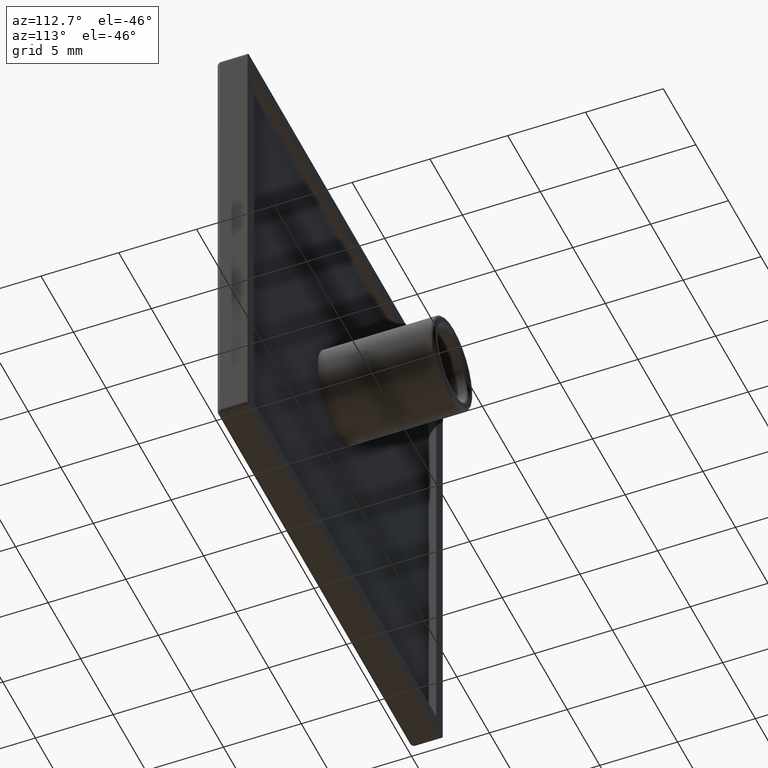
[diagram: clean part render]
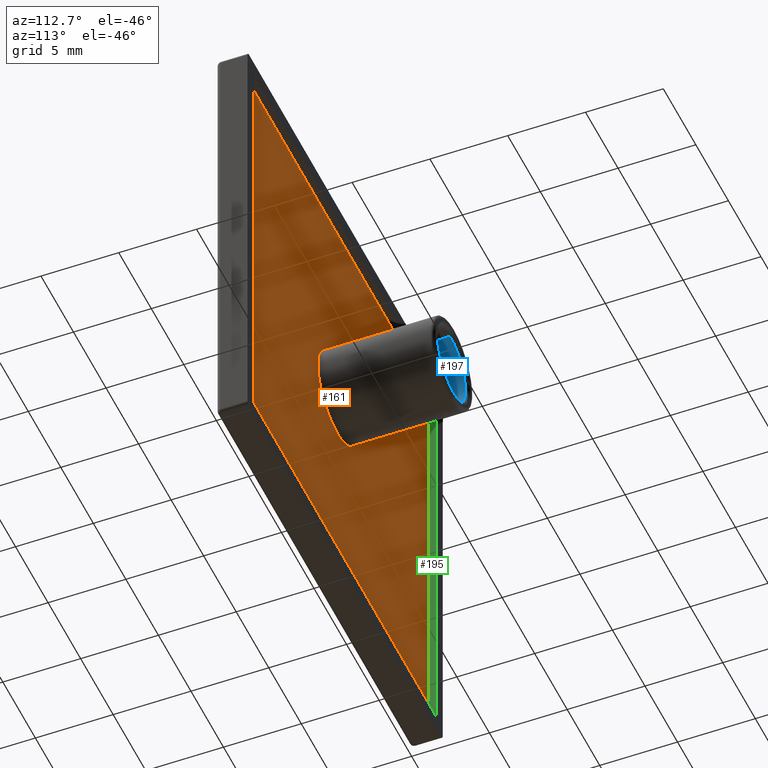
[diagram: same view with three faces highlighted in distinct colors, each labeled with its STEP entity id]
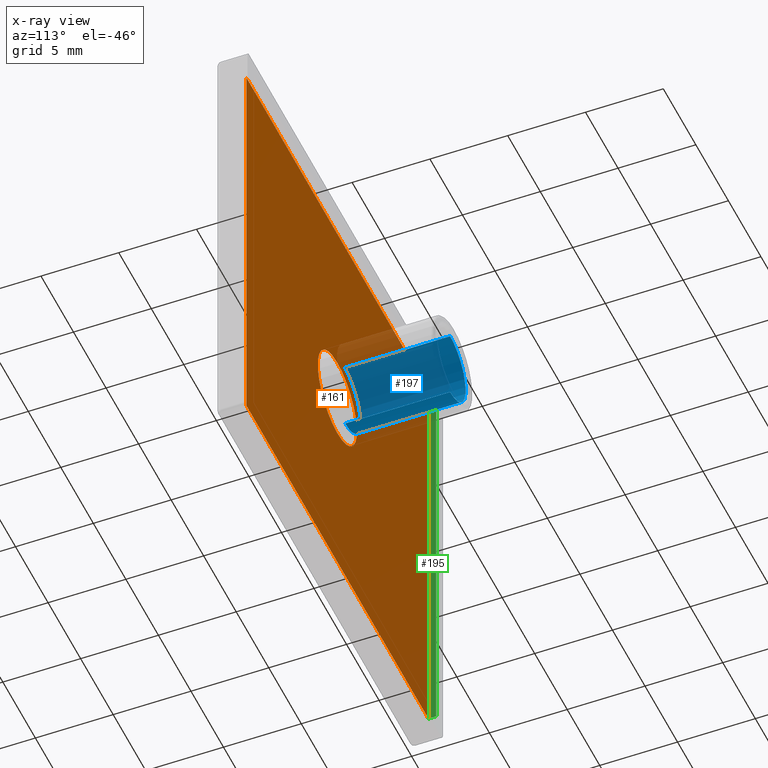
[diagram: x-ray of the same camera — body ghosted, the three highlighted faces saturated]
A machine part, auxiliary view with three faces highlighted in distinct colors.
The next image is the same camera in x-ray (body ghosted, the three faces saturated) — at least one of them is partly hidden behind the body in this view.
Their STEP definitions:

[orange] entity #161 — the highlighted planar face has unit normal (0, 1, 0).
#8 = CARTESIAN_POINT ( 'NONE',  ( 14.00000000000000000, 1.500000000000000000, 0.0000000000000000000 ) ) ;
#9 = DIRECTION ( 'NONE',  ( -0.0000000000000000000, -0.0000000000000000000, -1.000000000000000000 ) ) ;
#14 = CARTESIAN_POINT ( 'NONE',  ( 0.0000000000000000000, 1.500000000000000000, -14.00000000000000000 ) ) ;
#15 = DIRECTION ( 'NONE',  ( -1.000000000000000000, -0.0000000000000000000, -0.0000000000000000000 ) ) ;
#18 = CARTESIAN_POINT ( 'NONE',  ( -14.00000000000000000, 1.500000000000000000, 0.0000000000000000000 ) ) ;
#19 = DIRECTION ( 'NONE',  ( 0.0000000000000000000, 0.0000000000000000000, 1.000000000000000000 ) ) ;
#20 = CARTESIAN_POINT ( 'NONE',  ( 0.0000000000000000000, 1.500000000000000000, 14.00000000000000000 ) ) ;
#21 = DIRECTION ( 'NONE',  ( 1.000000000000000000, 0.0000000000000000000, 0.0000000000000000000 ) ) ;
#22 = CARTESIAN_POINT ( 'NONE',  ( 0.0000000000000000000, 1.499999999999999600, 0.0000000000000000000 ) ) ;
#23 = DIRECTION ( 'NONE',  ( 0.0000000000000000000, -1.000000000000000000, 0.0000000000000000000 ) ) ;
#24 = DIRECTION ( 'NONE',  ( 0.0000000000000000000, 0.0000000000000000000, -1.000000000000000000 ) ) ;
#43 = CARTESIAN_POINT ( 'NONE',  ( -14.00000000000000000, 1.500000000000000000, 14.00000000000000000 ) ) ;
#47 = CARTESIAN_POINT ( 'NONE',  ( 14.00000000000000000, 1.500000000000000000, 14.00000000000000000 ) ) ;
#49 = CARTESIAN_POINT ( 'NONE',  ( 0.0000000000000000000, 1.499999999999999600, -3.000000000000000000 ) ) ;
#51 = CARTESIAN_POINT ( 'NONE',  ( -14.00000000000000000, 1.500000000000000000, -14.00000000000000000 ) ) ;
#63 = CARTESIAN_POINT ( 'NONE',  ( 14.00000000000000000, 1.500000000000000000, -14.00000000000000000 ) ) ;
#73 = CARTESIAN_POINT ( 'NONE',  ( 3.673940397442059900E-016, 1.499999999999999600, 3.000000000000000000 ) ) ;
#123 = CARTESIAN_POINT ( 'NONE',  ( 0.0000000000000000000, 1.499999999999999600, 0.0000000000000000000 ) ) ;
#124 = DIRECTION ( 'NONE',  ( 0.0000000000000000000, -1.000000000000000000, 0.0000000000000000000 ) ) ;
#125 = DIRECTION ( 'NONE',  ( 0.0000000000000000000, 0.0000000000000000000, -1.000000000000000000 ) ) ;
#161 = ADVANCED_FACE ( 'NONE', ( #622, #623 ), #488, .T. ) ;
#206 = ORIENTED_EDGE ( 'NONE', *, *, #429, .T. ) ;
#207 = ORIENTED_EDGE ( 'NONE', *, *, #432, .T. ) ;
#277 = EDGE_LOOP ( 'NONE', ( #612, #613 ) ) ;
#282 = EDGE_LOOP ( 'NONE', ( #615, #617, #206, #207 ) ) ;
#360 = AXIS2_PLACEMENT_3D ( 'NONE', #123, #124, #125 ) ;
#429 = EDGE_CURVE ( 'NONE', #463, #498, #652, .T. ) ;
#432 = EDGE_CURVE ( 'NONE', #498, #478, #735, .T. ) ;
#434 = EDGE_CURVE ( 'NONE', #478, #454, #752, .T. ) ;
#435 = EDGE_CURVE ( 'NONE', #454, #463, #616, .T. ) ;
#436 = EDGE_CURVE ( 'NONE', #509, #471, #624, .T. ) ;
#448 = DIRECTION ( 'NONE',  ( 0.0000000000000000000, 0.0000000000000000000, 1.000000000000000000 ) ) ;
#454 = VERTEX_POINT ( 'NONE', #43 ) ;
#457 = DIRECTION ( 'NONE',  ( 0.0000000000000000000, 1.000000000000000000, 0.0000000000000000000 ) ) ;
#463 = VERTEX_POINT ( 'NONE', #47 ) ;
#471 = VERTEX_POINT ( 'NONE', #49 ) ;
#478 = VERTEX_POINT ( 'NONE', #51 ) ;
#486 = CARTESIAN_POINT ( 'NONE',  ( -14.00000000000000000, 1.500000000000000000, -14.00000000000000000 ) ) ;
#488 = PLANE ( 'NONE',  #940 ) ;
#498 = VERTEX_POINT ( 'NONE', #63 ) ;
#509 = VERTEX_POINT ( 'NONE', #73 ) ;
#533 = AXIS2_PLACEMENT_3D ( 'NONE', #22, #23, #24 ) ;
#612 = ORIENTED_EDGE ( 'NONE', *, *, #953, .T. ) ;
#613 = ORIENTED_EDGE ( 'NONE', *, *, #436, .T. ) ;
#615 = ORIENTED_EDGE ( 'NONE', *, *, #434, .T. ) ;
#616 = LINE ( 'NONE', #20, #618 ) ;
#617 = ORIENTED_EDGE ( 'NONE', *, *, #435, .T. ) ;
#618 = VECTOR ( 'NONE', #21, 1000.000000000000000 ) ;
#622 = FACE_BOUND ( 'NONE', #277, .T. ) ;
#623 = FACE_OUTER_BOUND ( 'NONE', #282, .T. ) ;
#624 = CIRCLE ( 'NONE', #533, 3.000000000000000000 ) ;
#652 = LINE ( 'NONE', #8, #656 ) ;
#656 = VECTOR ( 'NONE', #9, 1000.000000000000000 ) ;
#717 = CIRCLE ( 'NONE', #360, 3.000000000000000000 ) ;
#735 = LINE ( 'NONE', #14, #737 ) ;
#737 = VECTOR ( 'NONE', #15, 1000.000000000000000 ) ;
#752 = LINE ( 'NONE', #18, #753 ) ;
#753 = VECTOR ( 'NONE', #19, 1000.000000000000000 ) ;
#940 = AXIS2_PLACEMENT_3D ( 'NONE', #486, #457, #448 ) ;
#953 = EDGE_CURVE ( 'NONE', #471, #509, #717, .T. ) ;

[blue] entity #197 — the highlighted cylindrical surface (partial cylindrical patch) has radius 2.375 mm, axis along (0, -1, 0).
#34 = CARTESIAN_POINT ( 'NONE',  ( 2.908536147974963200E-016, 8.750000000000000000, 2.374999999999999600 ) ) ;
#35 = DIRECTION ( 'NONE',  ( 0.0000000000000000000, -1.000000000000000000, 0.0000000000000000000 ) ) ;
#41 = CARTESIAN_POINT ( 'NONE',  ( 0.0000000000000000000, 2.000000000000000000, -2.374999999999999600 ) ) ;
#52 = CARTESIAN_POINT ( 'NONE',  ( 0.0000000000000000000, 8.750000000000000000, -2.374999999999999600 ) ) ;
#58 = CARTESIAN_POINT ( 'NONE',  ( 2.908536147974963200E-016, 8.750000000000000000, 2.374999999999999600 ) ) ;
#67 = CARTESIAN_POINT ( 'NONE',  ( 2.908536147974963200E-016, 2.000000000000000000, 2.374999999999999600 ) ) ;
#91 = CARTESIAN_POINT ( 'NONE',  ( 0.0000000000000000000, 2.000000000000000000, 0.0000000000000000000 ) ) ;
#92 = DIRECTION ( 'NONE',  ( 0.0000000000000000000, -1.000000000000000000, 0.0000000000000000000 ) ) ;
#93 = DIRECTION ( 'NONE',  ( 0.0000000000000000000, 0.0000000000000000000, -1.000000000000000000 ) ) ;
#106 = CARTESIAN_POINT ( 'NONE',  ( 0.0000000000000000000, 8.750000000000000000, 0.0000000000000000000 ) ) ;
#107 = DIRECTION ( 'NONE',  ( 0.0000000000000000000, -1.000000000000000000, -0.0000000000000000000 ) ) ;
#108 = DIRECTION ( 'NONE',  ( 0.0000000000000000000, 0.0000000000000000000, -1.000000000000000000 ) ) ;
#131 = CARTESIAN_POINT ( 'NONE',  ( 0.0000000000000000000, 8.750000000000000000, -2.374999999999999600 ) ) ;
#132 = DIRECTION ( 'NONE',  ( 0.0000000000000000000, -1.000000000000000000, 0.0000000000000000000 ) ) ;
#197 = ADVANCED_FACE ( 'NONE', ( #693 ), #694, .F. ) ;
#203 = ORIENTED_EDGE ( 'NONE', *, *, #956, .F. ) ;
#251 = ORIENTED_EDGE ( 'NONE', *, *, #936, .T. ) ;
#267 = EDGE_LOOP ( 'NONE', ( #303, #300, #251, #203 ) ) ;
#300 = ORIENTED_EDGE ( 'NONE', *, *, #440, .T. ) ;
#303 = ORIENTED_EDGE ( 'NONE', *, *, #945, .F. ) ;
#355 = AXIS2_PLACEMENT_3D ( 'NONE', #106, #107, #108 ) ;
#440 = EDGE_CURVE ( 'NONE', #491, #502, #647, .T. ) ;
#451 = VERTEX_POINT ( 'NONE', #41 ) ;
#480 = VERTEX_POINT ( 'NONE', #52 ) ;
#491 = VERTEX_POINT ( 'NONE', #58 ) ;
#502 = VERTEX_POINT ( 'NONE', #67 ) ;
#542 = AXIS2_PLACEMENT_3D ( 'NONE', #91, #92, #93 ) ;
#568 = AXIS2_PLACEMENT_3D ( 'NONE', #840, #841, #842 ) ;
#647 = LINE ( 'NONE', #34, #653 ) ;
#653 = VECTOR ( 'NONE', #35, 1000.000000000000000 ) ;
#681 = CIRCLE ( 'NONE', #542, 2.374999999999999600 ) ;
#693 = FACE_OUTER_BOUND ( 'NONE', #267, .T. ) ;
#694 = CYLINDRICAL_SURFACE ( 'NONE', #568, 2.374999999999999600 ) ;
#698 = CIRCLE ( 'NONE', #355, 2.374999999999999600 ) ;
#722 = LINE ( 'NONE', #131, #994 ) ;
#840 = CARTESIAN_POINT ( 'NONE',  ( 0.0000000000000000000, 8.750000000000000000, 0.0000000000000000000 ) ) ;
#841 = DIRECTION ( 'NONE',  ( 0.0000000000000000000, -1.000000000000000000, 0.0000000000000000000 ) ) ;
#842 = DIRECTION ( 'NONE',  ( 0.0000000000000000000, 0.0000000000000000000, -1.000000000000000000 ) ) ;
#936 = EDGE_CURVE ( 'NONE', #502, #451, #681, .T. ) ;
#945 = EDGE_CURVE ( 'NONE', #491, #480, #698, .T. ) ;
#956 = EDGE_CURVE ( 'NONE', #480, #451, #722, .T. ) ;
#994 = VECTOR ( 'NONE', #132, 1000.000000000000000 ) ;

[green] entity #195 — the highlighted planar face has unit normal (-1, 0, 0).
#12 = CARTESIAN_POINT ( 'NONE',  ( -14.00000000000000000, 1.750000000000000000, -14.00000000000000000 ) ) ;
#13 = DIRECTION ( 'NONE',  ( -0.0000000000000000000, -1.000000000000000000, -0.0000000000000000000 ) ) ;
#16 = CARTESIAN_POINT ( 'NONE',  ( -14.00000000000000000, 1.750000000000000000, 14.00000000000000000 ) ) ;
#17 = DIRECTION ( 'NONE',  ( -0.0000000000000000000, -1.000000000000000000, -0.0000000000000000000 ) ) ;
#18 = CARTESIAN_POINT ( 'NONE',  ( -14.00000000000000000, 1.500000000000000000, 0.0000000000000000000 ) ) ;
#19 = DIRECTION ( 'NONE',  ( 0.0000000000000000000, 0.0000000000000000000, 1.000000000000000000 ) ) ;
#39 = CARTESIAN_POINT ( 'NONE',  ( -14.00000000249999800, 2.000000000000000000, 14.00000000249999800 ) ) ;
#43 = CARTESIAN_POINT ( 'NONE',  ( -14.00000000000000000, 1.500000000000000000, 14.00000000000000000 ) ) ;
#51 = CARTESIAN_POINT ( 'NONE',  ( -14.00000000000000000, 1.500000000000000000, -14.00000000000000000 ) ) ;
#64 = CARTESIAN_POINT ( 'NONE',  ( -14.00000000249999800, 2.000000000000000000, -14.00000000249999800 ) ) ;
#195 = ADVANCED_FACE ( 'NONE', ( #690 ), #833, .F. ) ;
#278 = EDGE_LOOP ( 'NONE', ( #600, #601, #602, #603 ) ) ;
#423 = EDGE_CURVE ( 'NONE', #444, #499, #761, .T. ) ;
#431 = EDGE_CURVE ( 'NONE', #499, #478, #730, .T. ) ;
#433 = EDGE_CURVE ( 'NONE', #444, #454, #743, .T. ) ;
#434 = EDGE_CURVE ( 'NONE', #478, #454, #752, .T. ) ;
#444 = VERTEX_POINT ( 'NONE', #39 ) ;
#454 = VERTEX_POINT ( 'NONE', #43 ) ;
#478 = VERTEX_POINT ( 'NONE', #51 ) ;
#499 = VERTEX_POINT ( 'NONE', #64 ) ;
#567 = AXIS2_PLACEMENT_3D ( 'NONE', #834, #835, #836 ) ;
#600 = ORIENTED_EDGE ( 'NONE', *, *, #433, .T. ) ;
#601 = ORIENTED_EDGE ( 'NONE', *, *, #434, .F. ) ;
#602 = ORIENTED_EDGE ( 'NONE', *, *, #431, .F. ) ;
#603 = ORIENTED_EDGE ( 'NONE', *, *, #423, .F. ) ;
#690 = FACE_OUTER_BOUND ( 'NONE', #278, .T. ) ;
#730 = LINE ( 'NONE', #12, #734 ) ;
#734 = VECTOR ( 'NONE', #13, 1000.000000000000000 ) ;
#743 = LINE ( 'NONE', #16, #744 ) ;
#744 = VECTOR ( 'NONE', #17, 1000.000000000000000 ) ;
#752 = LINE ( 'NONE', #18, #753 ) ;
#753 = VECTOR ( 'NONE', #19, 1000.000000000000000 ) ;
#761 = LINE ( 'NONE', #915, #762 ) ;
#762 = VECTOR ( 'NONE', #916, 1000.000000000000000 ) ;
#833 = PLANE ( 'NONE',  #567 ) ;
#834 = CARTESIAN_POINT ( 'NONE',  ( -14.00000000000000000, 1.500000000000000000, -14.00000000000000000 ) ) ;
#835 = DIRECTION ( 'NONE',  ( -1.000000000000000000, 0.0000000000000000000, 0.0000000000000000000 ) ) ;
#836 = DIRECTION ( 'NONE',  ( 0.0000000000000000000, 0.0000000000000000000, 1.000000000000000000 ) ) ;
#915 = CARTESIAN_POINT ( 'NONE',  ( -14.00000000000000000, 2.000000000000000000, 0.0000000000000000000 ) ) ;
#916 = DIRECTION ( 'NONE',  ( -0.0000000000000000000, -0.0000000000000000000, -1.000000000000000000 ) ) ;